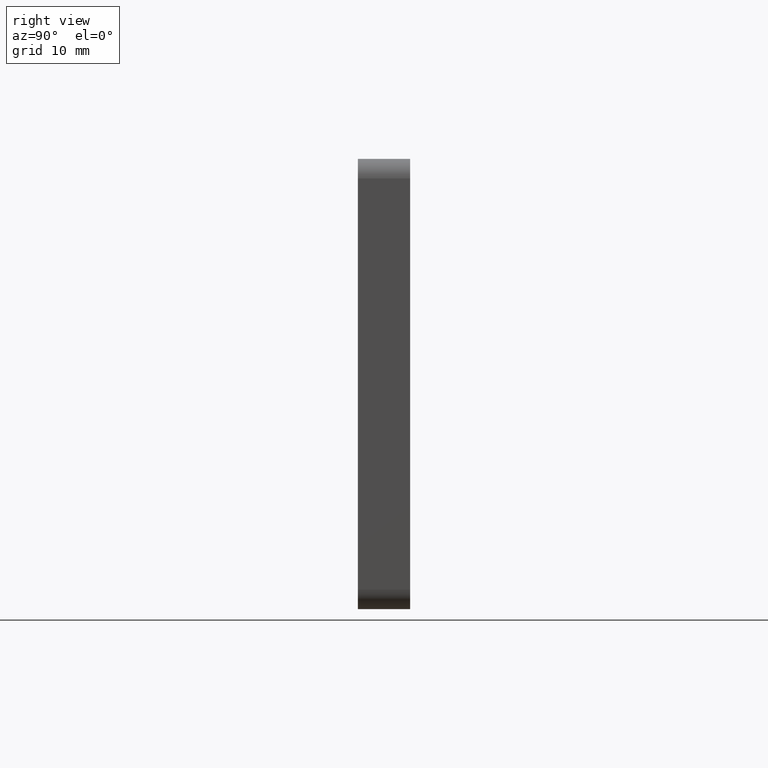
[diagram: clean part render]
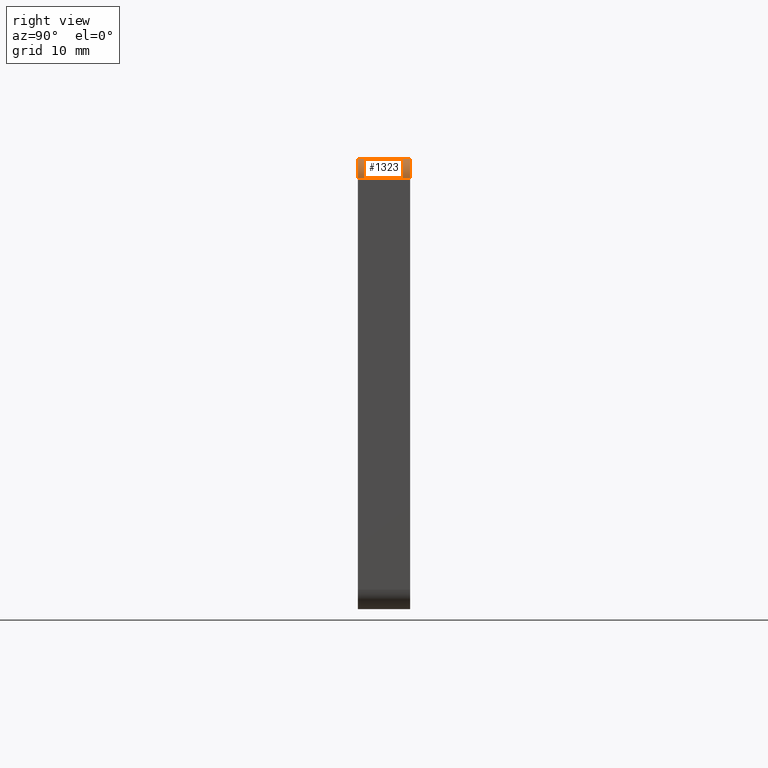
[diagram: same view with one face highlighted and labeled with its STEP entity id]
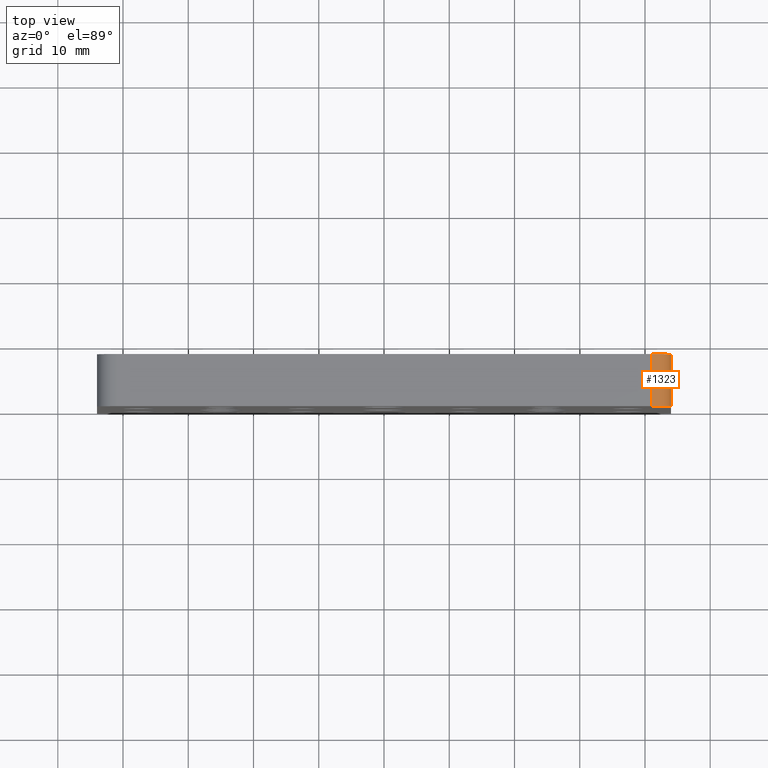
[diagram: same view with one face highlighted and labeled with its STEP entity id]
A machine part, right view. The second image highlights one B-rep face of the part: STEP entity #1323.
A second angle (top view) of the same face is appended — the face is thin or edge-on in the first view.
In plain terms, the highlighted cylindrical surface (edge-blend (fillet) strip) has radius 3 mm, axis along (0, -1, 0).
Its self-contained STEP definition (entity closure, byte-faithful):
#151 = DIRECTION ( 'NONE',  ( 0.0000000000000000000, 0.0000000000000000000, -1.000000000000000000 ) ) ;
#208 = ORIENTED_EDGE ( 'NONE', *, *, #1818, .F. ) ;
#209 = ORIENTED_EDGE ( 'NONE', *, *, #1228, .F. ) ;
#312 = VECTOR ( 'NONE', #1784, 1000.000000000000000 ) ;
#449 = CARTESIAN_POINT ( 'NONE',  ( 44.00000000000000000, 0.0000000000000000000, 31.50000000000000000 ) ) ;
#493 = DIRECTION ( 'NONE',  ( 0.0000000000000000000, 0.0000000000000000000, 1.000000000000000000 ) ) ;
#532 = CARTESIAN_POINT ( 'NONE',  ( 40.99999999999999300, 8.000000000000000000, 34.50000000000000000 ) ) ;
#661 = CARTESIAN_POINT ( 'NONE',  ( 44.00000000000000000, 8.000000000000000000, 31.50000000000000000 ) ) ;
#686 = CARTESIAN_POINT ( 'NONE',  ( 40.99999999999999300, 8.000000000000000000, 31.50000000000000000 ) ) ;
#823 = CYLINDRICAL_SURFACE ( 'NONE', #1268, 2.999999999999999100 ) ;
#994 = EDGE_LOOP ( 'NONE', ( #1646, #208, #209, #1844 ) ) ;
#1094 = VERTEX_POINT ( 'NONE', #1413 ) ;
#1138 = DIRECTION ( 'NONE',  ( -0.0000000000000000000, 1.000000000000000000, -0.0000000000000000000 ) ) ;
#1228 = EDGE_CURVE ( 'NONE', #2511, #1595, #1981, .T. ) ;
#1268 = AXIS2_PLACEMENT_3D ( 'NONE', #2172, #2380, #151 ) ;
#1323 = ADVANCED_FACE ( 'NONE', ( #1534 ), #823, .T. ) ;
#1358 = EDGE_CURVE ( 'NONE', #2121, #2511, #1469, .T. ) ;
#1413 = CARTESIAN_POINT ( 'NONE',  ( 40.99999999999999300, 8.000000000000000000, 34.50000000000000000 ) ) ;
#1450 = CARTESIAN_POINT ( 'NONE',  ( 40.99999999999999300, 0.0000000000000000000, 34.50000000000000000 ) ) ;
#1469 = LINE ( 'NONE', #2607, #312 ) ;
#1534 = FACE_OUTER_BOUND ( 'NONE', #994, .T. ) ;
#1595 = VERTEX_POINT ( 'NONE', #1450 ) ;
#1646 = ORIENTED_EDGE ( 'NONE', *, *, #2600, .F. ) ;
#1755 = DIRECTION ( 'NONE',  ( 0.0000000000000000000, 0.0000000000000000000, 1.000000000000000000 ) ) ;
#1784 = DIRECTION ( 'NONE',  ( 0.0000000000000000000, -1.000000000000000000, 0.0000000000000000000 ) ) ;
#1818 = EDGE_CURVE ( 'NONE', #1595, #1094, #2074, .T. ) ;
#1844 = ORIENTED_EDGE ( 'NONE', *, *, #1358, .F. ) ;
#1922 = AXIS2_PLACEMENT_3D ( 'NONE', #686, #2338, #1755 ) ;
#1981 = CIRCLE ( 'NONE', #2546, 3.000000000000002700 ) ;
#2074 = LINE ( 'NONE', #532, #2530 ) ;
#2121 = VERTEX_POINT ( 'NONE', #661 ) ;
#2146 = CARTESIAN_POINT ( 'NONE',  ( 40.99999999999999300, 0.0000000000000000000, 31.50000000000000000 ) ) ;
#2172 = CARTESIAN_POINT ( 'NONE',  ( 40.99999999999999300, 8.000000000000000000, 31.50000000000000000 ) ) ;
#2338 = DIRECTION ( 'NONE',  ( 0.0000000000000000000, 1.000000000000000000, 0.0000000000000000000 ) ) ;
#2380 = DIRECTION ( 'NONE',  ( 0.0000000000000000000, -1.000000000000000000, 0.0000000000000000000 ) ) ;
#2490 = CIRCLE ( 'NONE', #1922, 3.000000000000002700 ) ;
#2511 = VERTEX_POINT ( 'NONE', #449 ) ;
#2530 = VECTOR ( 'NONE', #1138, 1000.000000000000000 ) ;
#2542 = DIRECTION ( 'NONE',  ( -0.0000000000000000000, -1.000000000000000000, -0.0000000000000000000 ) ) ;
#2546 = AXIS2_PLACEMENT_3D ( 'NONE', #2146, #2542, #493 ) ;
#2600 = EDGE_CURVE ( 'NONE', #1094, #2121, #2490, .T. ) ;
#2607 = CARTESIAN_POINT ( 'NONE',  ( 44.00000000000000000, 8.000000000000000000, 31.50000000000000000 ) ) ;